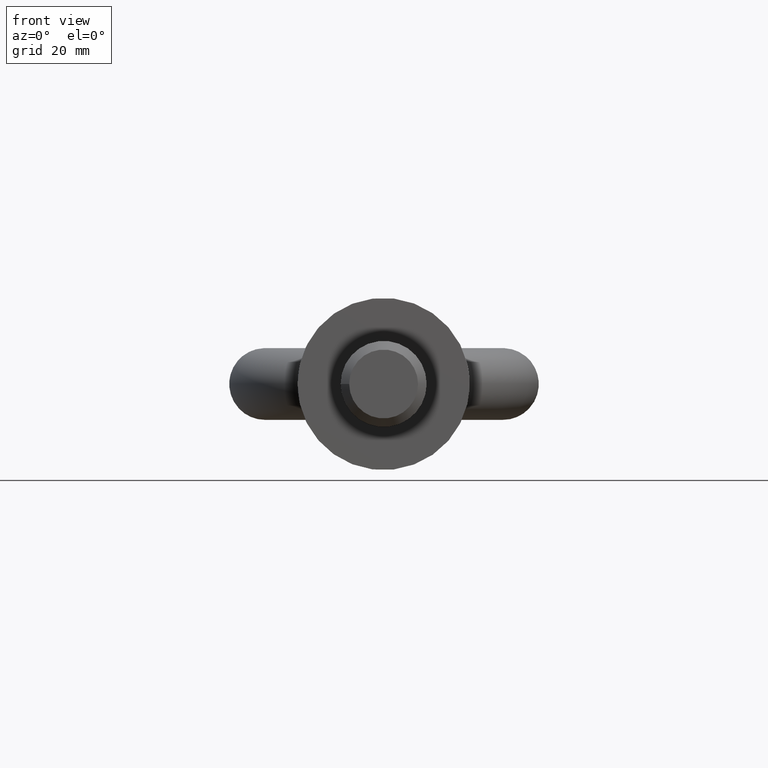
[diagram: clean part render]
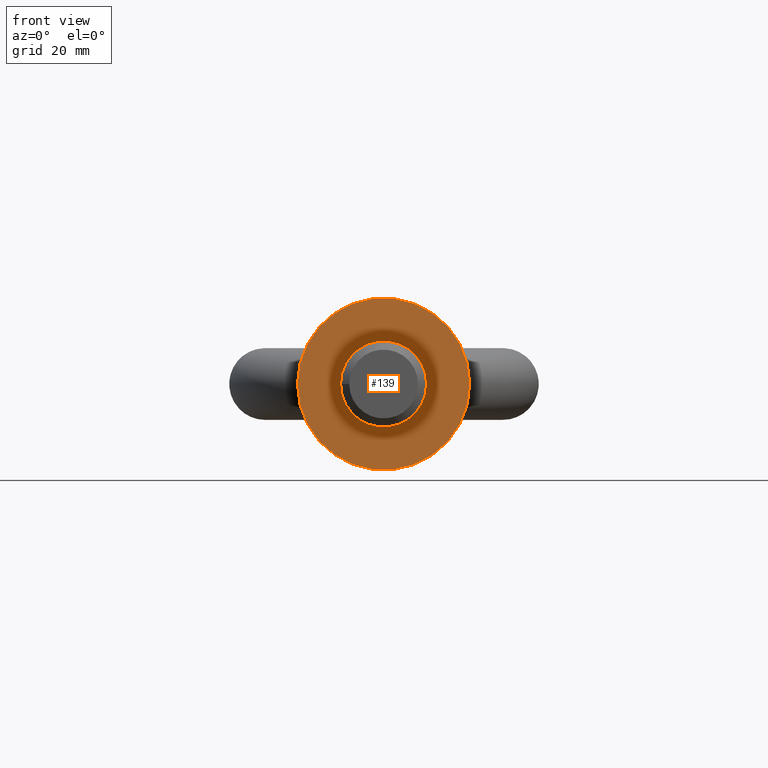
[diagram: same view with one face highlighted and labeled with its STEP entity id]
A machine part, front view. The second image highlights one B-rep face of the part: STEP entity #139.
In plain terms, the highlighted planar face has unit normal (-0, 1, 0).
Its self-contained STEP definition (entity closure, byte-faithful):
#82=FACE_BOUND('',#230,.T.);
#83=FACE_BOUND('',#231,.T.);
#139=ADVANCED_FACE('',(#82,#83),#172,.F.);
#172=PLANE('',#703);
#230=EDGE_LOOP('',(#361));
#231=EDGE_LOOP('',(#362));
#361=ORIENTED_EDGE('',*,*,#583,.F.);
#362=ORIENTED_EDGE('',*,*,#582,.T.);
#520=VERTEX_POINT('',#1183);
#521=VERTEX_POINT('',#1186);
#582=EDGE_CURVE('',#520,#520,#641,.T.);
#583=EDGE_CURVE('',#521,#521,#642,.T.);
#641=CIRCLE('',#700,8.99999999999999);
#642=CIRCLE('',#702,18.);
#700=AXIS2_PLACEMENT_3D('',#1182,#808,#809);
#702=AXIS2_PLACEMENT_3D('',#1185,#812,#813);
#703=AXIS2_PLACEMENT_3D('',#1187,#814,#815);
#808=DIRECTION('',(-3.58976547520617E-18,1.,0.));
#809=DIRECTION('',(-1.,-3.58976547520617E-18,0.));
#812=DIRECTION('',(-3.58976547520617E-18,1.,0.));
#813=DIRECTION('',(-1.,-3.58976547520617E-18,0.));
#814=DIRECTION('',(-3.58976547520617E-18,1.,0.));
#815=DIRECTION('',(-1.,-3.58976547520617E-18,0.));
#1182=CARTESIAN_POINT('',(8.07697231921387E-17,0.,0.));
#1183=CARTESIAN_POINT('',(-8.99999999999999,-3.23078892768555E-17,0.));
#1185=CARTESIAN_POINT('',(8.07697231921387E-17,0.,0.));
#1186=CARTESIAN_POINT('',(-18.,-6.4615778553711E-17,0.));
#1187=CARTESIAN_POINT('',(8.99999999999999,6.57401794892617E-16,0.));